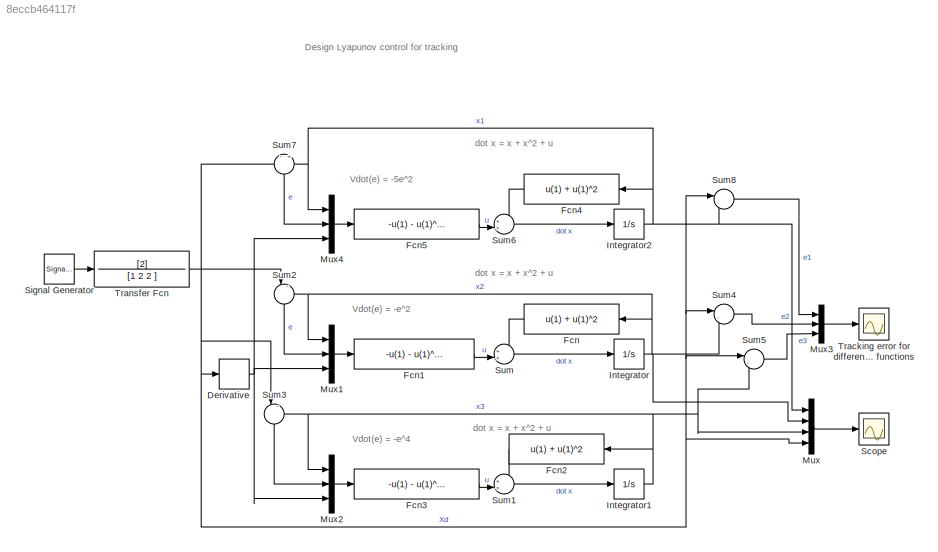
MODEL slx_8eccb464117f
KIND model
CONFIG AbsTol = auto
CONFIG EnableMultiTasking = on
CONFIG FixedStep = 0.001
CONFIG InitFcn = X0 = randn(1)*10 ;
CONFIG MaxStep = auto
CONFIG MinStep = auto
CONFIG RelTol = 1e-3
CONFIG SampleTimeConstraint = Unconstrained
CONFIG Solver = FixedStepAuto
CONFIG SolverName = FixedStepAuto
CONFIG StartTime = 0.0
CONFIG StopTime = 100
BLOCK [Derivative] Derivative
BLOCK [Fcn] Fcn
  Expr = u(1) + u(1)^2
BLOCK [Fcn] Fcn1
  Expr = -u(1) - u(1)^2 - u(2) + u(3)
BLOCK [Fcn] Fcn2
  Expr = u(1) + u(1)^2
BLOCK [Fcn] Fcn3
  Expr = -u(1) - u(1)^2 - u(2)^3 + u(3)
BLOCK [Fcn] Fcn4
  Expr = u(1) + u(1)^2
BLOCK [Fcn] Fcn5
  Expr = -u(1) - u(1)^2 - 5*u(2) + u(3)
BLOCK [Integrator] Integrator
  InitialCondition = X0
  Ports = [1, 1]
BLOCK [Integrator] Integrator1
  InitialCondition = X0
  Ports = [1, 1]
BLOCK [Integrator] Integrator2
  InitialCondition = X0
  Ports = [1, 1]
BLOCK [Mux] Mux
  DisplayOption = bar
  Ports = [4, 1]
BLOCK [Mux] Mux1
  DisplayOption = bar
  Inputs = 3
  Ports = [3, 1]
BLOCK [Mux] Mux2
  DisplayOption = bar
  Inputs = 3
  Ports = [3, 1]
BLOCK [Mux] Mux3
  DisplayOption = bar
  Inputs = 3
  Ports = [3, 1]
BLOCK [Mux] Mux4
  DisplayOption = bar
  Inputs = 3
  Ports = [3, 1]
BLOCK [Scope] Scope
  Floating = off
  NumInputPorts = 1
  Ports = [1]
  ScopeSpecificationString = Simulink.scopes.TimeScopeBlockCfg('CurrentConfiguration', extmgr.ConfigurationSet(extmgr.Configuration('Core','General UI',true),extmgr.Configuration('Core','Source UI',true),extmgr.Configuration('Sources','WiredSimulink',true),extmgr.Configuration('Visuals','Time Domain',true,'SerializedDisplays',{struct('MinYLimReal','-1.86319','MaxYLimReal','16.75922','YLabelReal','','MinYLimMag','0.00000','Max...<+1418ch>
BLOCK [SignalGenerator] Signal Generator
  Frequency = 0.05
  Ports = [0, 1]
BLOCK [Sum] Sum
  IconShape = round
  InputSameDT = off
  Inputs = ++|
  OutDataTypeStr = Inherit: Inherit via internal rule
  Ports = [2, 1]
  SaturateOnIntegerOverflow = off
BLOCK [Sum] Sum1
  IconShape = round
  InputSameDT = off
  Inputs = ++|
  OutDataTypeStr = Inherit: Inherit via internal rule
  Ports = [2, 1]
  SaturateOnIntegerOverflow = off
BLOCK [Sum] Sum2
  IconShape = round
  InputSameDT = off
  Inputs = |-+
  OutDataTypeStr = Inherit: Inherit via internal rule
  Ports = [2, 1]
  SaturateOnIntegerOverflow = off
BLOCK [Sum] Sum3
  IconShape = round
  InputSameDT = off
  Inputs = |-+
  OutDataTypeStr = Inherit: Inherit via internal rule
  Ports = [2, 1]
  SaturateOnIntegerOverflow = off
BLOCK [Sum] Sum4
  IconShape = round
  InputSameDT = off
  Inputs = |-+
  OutDataTypeStr = Inherit: Inherit via internal rule
  Ports = [2, 1]
  SaturateOnIntegerOverflow = off
BLOCK [Sum] Sum5
  IconShape = round
  InputSameDT = off
  Inputs = |-+
  OutDataTypeStr = Inherit: Inherit via internal rule
  Ports = [2, 1]
  SaturateOnIntegerOverflow = off
BLOCK [Sum] Sum6
  IconShape = round
  InputSameDT = off
  Inputs = ++|
  OutDataTypeStr = Inherit: Inherit via internal rule
  Ports = [2, 1]
  SaturateOnIntegerOverflow = off
BLOCK [Sum] Sum7
  IconShape = round
  InputSameDT = off
  Inputs = -|+
  OutDataTypeStr = Inherit: Inherit via internal rule
  Ports = [2, 1]
  SaturateOnIntegerOverflow = off
BLOCK [Sum] Sum8
  IconShape = round
  InputSameDT = off
  Inputs = |-+
  OutDataTypeStr = Inherit: Inherit via internal rule
  Ports = [2, 1]
  SaturateOnIntegerOverflow = off
BLOCK [Scope] Tracking error for different lyapunov functions
  Floating = off
  NumInputPorts = 1
  Ports = [1]
  ScopeSpecificationString = Simulink.scopes.TimeScopeBlockCfg('CurrentConfiguration', extmgr.ConfigurationSet(extmgr.Configuration('Core','General UI',true),extmgr.Configuration('Core','Source UI',true),extmgr.Configuration('Sources','WiredSimulink',true,'DataLoggingVariableName','ScopeData1'),extmgr.Configuration('Visuals','Time Domain',true,'SerializedDisplays',{struct('MinYLimReal','-1.86214','MaxYLimReal','16.7591','YLab...<+1448ch>
BLOCK [TransferFcn] Transfer Fcn
  Denominator = [1 2 2 ]
  Numerator = [2]
ANNOTATION (root): Design Lyapunov control for tracking
ANNOTATION (root): Vdot(e) = -5e^2
ANNOTATION (root): Vdot(e) = -e^2
ANNOTATION (root): Vdot(e) = -e^4
ANNOTATION (root): dot x = x + x^2 + u
NET Derivative:1 -> Mux1:3, Mux2:3, Mux4:3
LINE Fcn1:1 -> Sum:2
LINE Fcn2:1 -> Sum1:1
LINE Fcn3:1 -> Sum1:2
LINE Fcn4:1 -> Sum6:1
LINE Fcn5:1 -> Sum6:2
LINE Fcn:1 -> Sum:1
NET Integrator1:1 -> Fcn2:1, Mux2:1, Mux:3, Sum3:2, Sum5:2
NET Integrator2:1 -> Fcn4:1, Mux4:1, Mux:1, Sum7:2, Sum8:2
NET Integrator:1 -> Fcn:1, Mux1:1, Mux:2, Sum2:2, Sum4:2
LINE Mux1:1 -> Fcn1:1
LINE Mux2:1 -> Fcn3:1
LINE Mux3:1 -> Tracking error for different lyapunov functions:1
LINE Mux4:1 -> Fcn5:1
LINE Mux:1 -> Scope:1
LINE Signal Generator:1 -> Transfer Fcn:1
LINE Sum1:1 -> Integrator1:1
LINE Sum2:1 -> Mux1:2
LINE Sum3:1 -> Mux2:2
LINE Sum4:1 -> Mux3:2
LINE Sum5:1 -> Mux3:3
LINE Sum6:1 -> Integrator2:1
LINE Sum7:1 -> Mux4:2
LINE Sum8:1 -> Mux3:1
LINE Sum:1 -> Integrator:1
NET Transfer Fcn:1 -> Derivative:1, Mux:4, Sum2:1, Sum3:1, Sum4:1, Sum5:1, Sum7:1, Sum8:1
note: NET lines group one-source signal fan-out (src -> all destinations, sorted); 1:1 wires keep LINE
